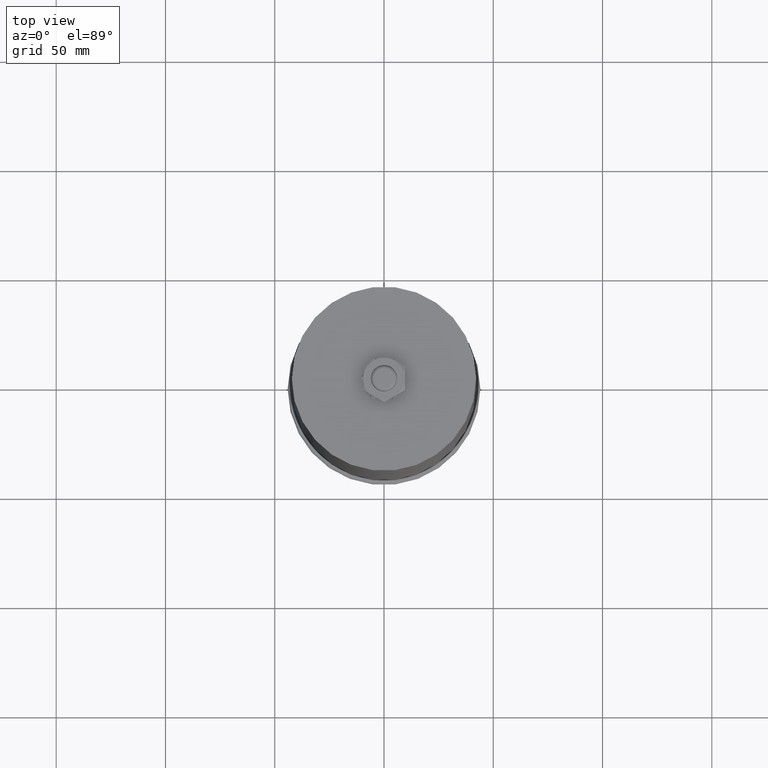
[diagram: clean part render]
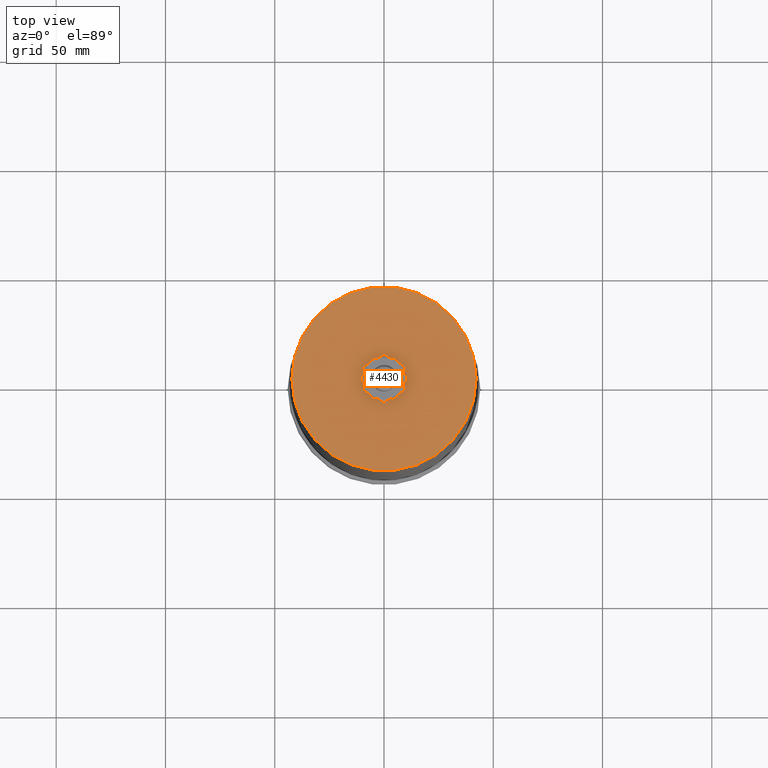
[diagram: same view with one face highlighted and labeled with its STEP entity id]
A machine part, top view. The second image highlights one B-rep face of the part: STEP entity #4430.
In plain terms, the highlighted planar face has unit normal (0, 0, 1).
Its self-contained STEP definition (entity closure, byte-faithful):
#197=FACE_BOUND('',#619,.T.);
#219=PLANE('',#4821);
#364=FACE_OUTER_BOUND('',#618,.T.);
#618=EDGE_LOOP('',(#3132));
#619=EDGE_LOOP('',(#3133));
#900=CIRCLE('',#4816,0.236);
#901=CIRCLE('',#4819,1.66);
#1985=VERTEX_POINT('',#6421);
#1986=VERTEX_POINT('',#6426);
#2433=EDGE_CURVE('',#1985,#1985,#900,.T.);
#2434=EDGE_CURVE('',#1986,#1986,#901,.T.);
#3132=ORIENTED_EDGE('',*,*,#2434,.T.);
#3133=ORIENTED_EDGE('',*,*,#2433,.T.);
#4430=ADVANCED_FACE('',(#364,#197),#219,.T.);
#4816=AXIS2_PLACEMENT_3D('',#6423,#5267,#5268);
#4819=AXIS2_PLACEMENT_3D('',#6427,#5273,#5274);
#4821=AXIS2_PLACEMENT_3D('',#6431,#5278,#5279);
#5267=DIRECTION('center_axis',(0.,0.,-1.));
#5268=DIRECTION('ref_axis',(-1.,0.,0.));
#5273=DIRECTION('center_axis',(0.,0.,1.));
#5274=DIRECTION('ref_axis',(-1.,0.,0.));
#5278=DIRECTION('center_axis',(0.,0.,1.));
#5279=DIRECTION('ref_axis',(1.,0.,0.));
#6421=CARTESIAN_POINT('',(0.236,2.89016644598775E-17,10.38));
#6423=CARTESIAN_POINT('Origin',(0.,0.,10.38));
#6426=CARTESIAN_POINT('',(1.66,2.03291368658461E-16,10.38));
#6427=CARTESIAN_POINT('Origin',(0.,0.,10.38));
#6431=CARTESIAN_POINT('Origin',(-1.2751759830337E-16,2.76441627287912E-17,
10.38));